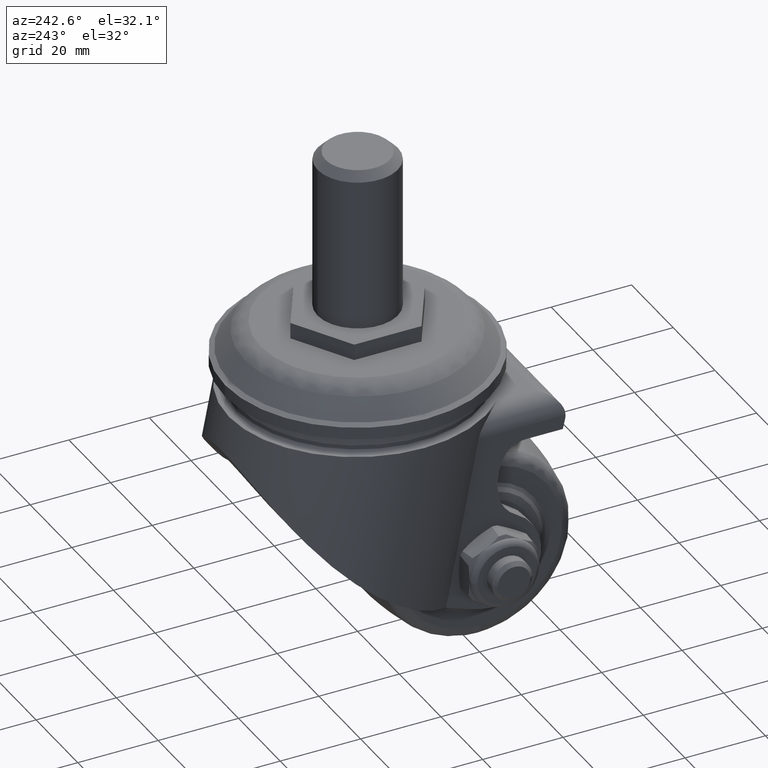
[diagram: clean part render]
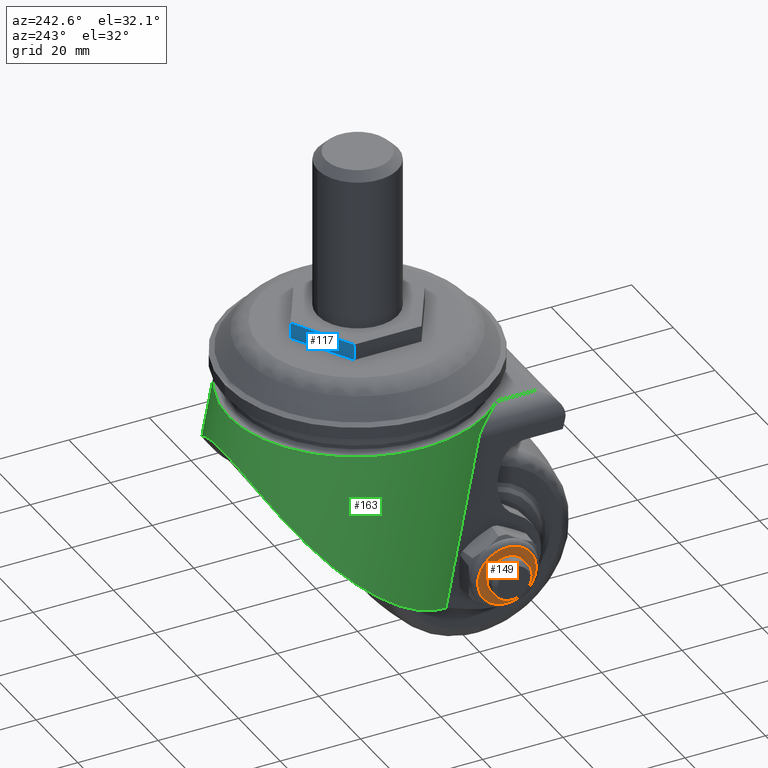
[diagram: same view with three faces highlighted in distinct colors, each labeled with its STEP entity id]
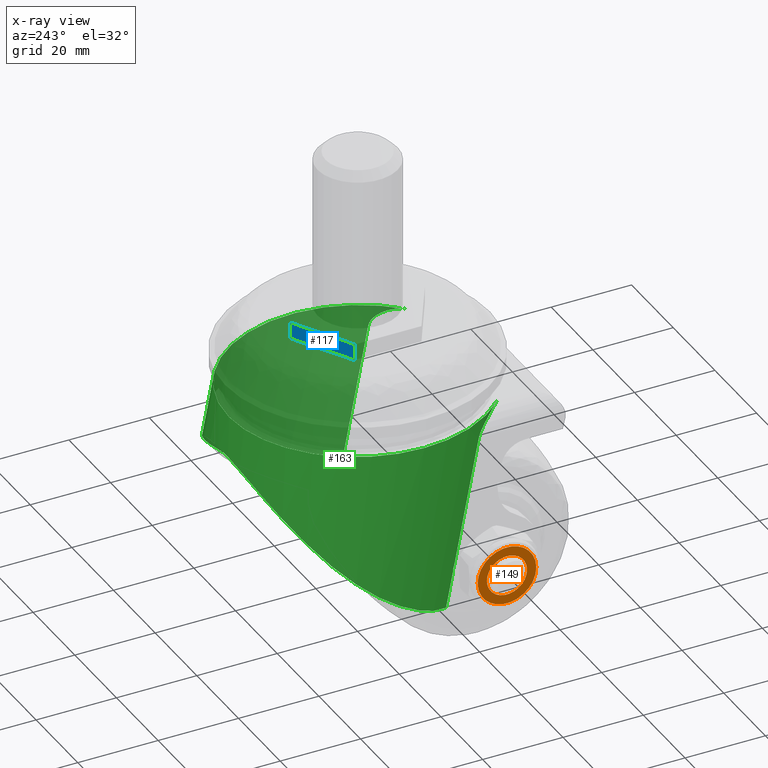
[diagram: x-ray of the same camera — body ghosted, the three highlighted faces saturated]
A machine part, auxiliary view with three faces highlighted in distinct colors.
The next image is the same camera in x-ray (body ghosted, the three faces saturated) — at least one of them is partly hidden behind the body in this view.
Their STEP definitions:

[orange] entity #149 — the highlighted planar face has unit normal (1, 0, 0).
#149=ADVANCED_FACE('',(#655,#656),#654,.F.);
#654=PLANE('',#2194);
#655=FACE_OUTER_BOUND('',#2195,.T.);
#656=FACE_BOUND('',#2196,.T.);
#2191=CARTESIAN_POINT('',(-3.31000000000E+01,-6.91727650743E+01,3.67900000000E+01));
#2192=DIRECTION('',(1.00000000000E+00,0.00000000000E+00,0.00000000000E+00));
#2193=DIRECTION('',(0.00000000000E+00,0.00000000000E+00,-1.00000000000E+00));
#2194=AXIS2_PLACEMENT_3D('',#2191,#2192,#2193);
#2195=EDGE_LOOP('',(#3853,#3854));
#2196=EDGE_LOOP('',(#3855,#3856));
#3853=ORIENTED_EDGE('',*,*,#4532,.F.);
#3854=ORIENTED_EDGE('',*,*,#4533,.F.);
#3855=ORIENTED_EDGE('',*,*,#4534,.T.);
#3856=ORIENTED_EDGE('',*,*,#4535,.T.);
#4532=EDGE_CURVE('',#5685,#5686,#5687,.T.);
#4533=EDGE_CURVE('',#5686,#5685,#5693,.T.);
#4534=EDGE_CURVE('',#5699,#5700,#5701,.T.);
#4535=EDGE_CURVE('',#5700,#5699,#5707,.T.);
#5685=VERTEX_POINT('',#8107);
#5686=VERTEX_POINT('',#8108);
#5687=CIRCLE('',#8112,7.30000000000E+00);
#5693=CIRCLE('',#8116,7.30000000000E+00);
#5699=VERTEX_POINT('',#8117);
#5700=VERTEX_POINT('',#8118);
#5701=CIRCLE('',#8122,5.00000000000E+00);
#5707=CIRCLE('',#8126,5.00000000000E+00);
#8107=CARTESIAN_POINT('',(-3.31000000000E+01,-5.40000000000E+01,2.73000000000E+01));
#8108=CARTESIAN_POINT('',(-3.31000000000E+01,-5.40000000000E+01,1.27000000000E+01));
#8109=CARTESIAN_POINT('',(-3.31000000000E+01,-5.40000000000E+01,2.00000000000E+01));
#8110=DIRECTION('',(1.00000000000E+00,0.00000000000E+00,0.00000000000E+00));
#8111=DIRECTION('',(0.00000000000E+00,-1.22460635382E-16,-1.00000000000E+00));
#8112=AXIS2_PLACEMENT_3D('',#8109,#8110,#8111);
#8113=CARTESIAN_POINT('',(-3.31000000000E+01,-5.40000000000E+01,2.00000000000E+01));
#8114=DIRECTION('',(1.00000000000E+00,0.00000000000E+00,0.00000000000E+00));
#8115=DIRECTION('',(0.00000000000E+00,-1.22460635382E-16,-1.00000000000E+00));
#8116=AXIS2_PLACEMENT_3D('',#8113,#8114,#8115);
#8117=CARTESIAN_POINT('',(-3.31000000000E+01,-5.40000000000E+01,1.50000000000E+01));
#8118=CARTESIAN_POINT('',(-3.31000000000E+01,-5.40000000000E+01,2.50000000000E+01));
#8119=CARTESIAN_POINT('',(-3.31000000000E+01,-5.40000000000E+01,2.00000000000E+01));
#8120=DIRECTION('',(1.00000000000E+00,0.00000000000E+00,0.00000000000E+00));
#8121=DIRECTION('',(0.00000000000E+00,-1.22460635382E-16,-1.00000000000E+00));
#8122=AXIS2_PLACEMENT_3D('',#8119,#8120,#8121);
#8123=CARTESIAN_POINT('',(-3.31000000000E+01,-5.40000000000E+01,2.00000000000E+01));
#8124=DIRECTION('',(1.00000000000E+00,0.00000000000E+00,0.00000000000E+00));
#8125=DIRECTION('',(0.00000000000E+00,-1.22460635382E-16,-1.00000000000E+00));
#8126=AXIS2_PLACEMENT_3D('',#8123,#8124,#8125);

[blue] entity #117 — the highlighted planar face has unit normal (0.5, -0.866, 0).
#117=ADVANCED_FACE('',(#330),#329,.F.);
#329=PLANE('',#1999);
#330=FACE_OUTER_BOUND('',#2000,.T.);
#1996=CARTESIAN_POINT('',(-1.59500250438E+01,-4.00000000001E-01,-7.53442236000E+00));
#1997=DIRECTION('',(4.99999851612E-01,0.00000000000E+00,8.66025489456E-01));
#1998=DIRECTION('',(8.66025489456E-01,0.00000000000E+00,-4.99999851612E-01));
#1999=AXIS2_PLACEMENT_3D('',#1996,#1997,#1998);
#2000=EDGE_LOOP('',(#3676,#3677,#3678,#3679));
#3676=ORIENTED_EDGE('',*,*,#4417,.T.);
#3677=ORIENTED_EDGE('',*,*,#4418,.F.);
#3678=ORIENTED_EDGE('',*,*,#4419,.F.);
#3679=ORIENTED_EDGE('',*,*,#4414,.T.);
#4414=EDGE_CURVE('',#4893,#4886,#4894,.T.);
#4417=EDGE_CURVE('',#4886,#4913,#4914,.T.);
#4418=EDGE_CURVE('',#4920,#4913,#4921,.T.);
#4419=EDGE_CURVE('',#4893,#4920,#4927,.T.);
#4886=VERTEX_POINT('',#7320);
#4893=VERTEX_POINT('',#7324);
#4894=LINE('',#7325,#7326);
#4913=VERTEX_POINT('',#7335);
#4914=LINE('',#7336,#7337);
#4920=VERTEX_POINT('',#7339);
#4921=LINE('',#7340,#7341);
#4927=LINE('',#7343,#7344);
#7320=CARTESIAN_POINT('',(-2.07303912418E-05,9.32587340685E-12,-1.67431560000E+01));
#7324=CARTESIAN_POINT('',(-2.07303912418E-05,4.00000000001E+00,-1.67431560000E+01));
#7325=CARTESIAN_POINT('',(-2.07303912418E-05,4.00000000001E+00,-1.67431560000E+01));
#7326=VECTOR('',#7327,4.00000000000E+00);
#7327=DIRECTION('',(0.00000000000E+00,-1.00000000000E+00,0.00000000000E+00));
#7335=CARTESIAN_POINT('',(-1.45000247304E+01,0.00000000000E+00,-8.37158010000E+00));
#7336=CARTESIAN_POINT('',(-2.15964164144E-05,9.32587340685E-12,-1.67431575000E+01));
#7337=VECTOR('',#7338,1.67431597690E+01);
#7338=DIRECTION('',(-8.66025489456E-01,0.00000000000E+00,4.99999851612E-01));
#7339=CARTESIAN_POINT('',(-1.45000247304E+01,4.00000000001E+00,-8.37158010000E+00));
#7340=CARTESIAN_POINT('',(-1.45000247304E+01,4.00000000001E+00,-8.37158010000E+00));
#7341=VECTOR('',#7342,4.00000000001E+00);
#7342=DIRECTION('',(0.00000000000E+00,-1.00000000000E+00,0.00000000000E+00));
#7343=CARTESIAN_POINT('',(-2.15964164144E-05,4.00000000001E+00,-1.67431575000E+01));
#7344=VECTOR('',#7345,1.67431597690E+01);
#7345=DIRECTION('',(-8.66025489456E-01,0.00000000000E+00,4.99999851612E-01));

[green] entity #163 — the highlighted cylindrical surface (partial cylindrical patch) has radius 31.5 mm, axis along (0, -0.1908, 0.9816).
#163=ADVANCED_FACE('',(#796),#795,.T.);
#795=CYLINDRICAL_SURFACE('',#2265,3.15000000000E+01);
#796=FACE_OUTER_BOUND('',#2266,.T.);
#2262=CARTESIAN_POINT('',(0.00000000000E+00,-7.07767669241E+01,-1.06475846995E+01));
#2263=DIRECTION('',(-0.00000000000E+00,9.81627183448E-01,1.90808995377E-01));
#2264=DIRECTION('',(-0.00000000000E+00,-1.90808995377E-01,9.81627183448E-01));
#2265=AXIS2_PLACEMENT_3D('',#2262,#2263,#2264);
#2266=EDGE_LOOP('',(#3913,#3914,#3915,#3916,#3917,#3918,#3919,#3920,#3921));
#3913=ORIENTED_EDGE('',*,*,#4461,.F.);
#3914=ORIENTED_EDGE('',*,*,#4493,.T.);
#3915=ORIENTED_EDGE('',*,*,#4473,.F.);
#3916=ORIENTED_EDGE('',*,*,#4554,.T.);
#3917=ORIENTED_EDGE('',*,*,#4555,.T.);
#3918=ORIENTED_EDGE('',*,*,#4470,.F.);
#3919=ORIENTED_EDGE('',*,*,#4553,.F.);
#3920=ORIENTED_EDGE('',*,*,#4556,.F.);
#3921=ORIENTED_EDGE('',*,*,#4458,.F.);
#4458=EDGE_CURVE('',#5188,#5174,#5195,.T.);
#4461=EDGE_CURVE('',#5209,#5188,#5216,.T.);
#4470=EDGE_CURVE('',#5277,#5278,#5279,.T.);
#4473=EDGE_CURVE('',#5292,#5299,#5300,.T.);
#4493=EDGE_CURVE('',#5209,#5299,#5432,.T.);
#4553=EDGE_CURVE('',#5815,#5277,#5822,.T.);
#4554=EDGE_CURVE('',#5292,#5828,#5829,.T.);
#4555=EDGE_CURVE('',#5828,#5278,#5835,.T.);
#4556=EDGE_CURVE('',#5174,#5815,#5841,.T.);
#5174=VERTEX_POINT('',#7547);
#5188=VERTEX_POINT('',#7555);
#5195=(BOUNDED_CURVE() B_SPLINE_CURVE(3,(#7559,#7560,#7561,#7562,#7563,#7564,#7565,#7566,#7567,#7568,#7569,#7570,#7571,#7572,#7573,#7574,#7575,#7576),.UNSPECIFIED.,.F.,.F.) B_SPLINE_CURVE_WITH_KNOTS((4,2,2,2,2,2,2,2,4),(0.00000000000E+00,6.69203929331E-04,1.33840785866E-03,2.67681571732E-03,4.01522357599E-03,5.35363143465E-03,6.69203929331E-03,8.03044715197E-03,1.07072628693E-02),.UNSPECIFIED.) CURVE() GEOMETRIC_REPRESENTATION_ITEM() RATIONAL_B_SPLINE_CURVE((1.00000000000E+00,1.00000000000E+00,1.00000000000E+00,1.00000000000E+00,1.00000000000E+00,1.00000000000E+00,1.00000000000E+00,1.00000000000E+00,1.00000000000E+00,1.00000000000E+00,1.00000000000E+00,1.00000000000E+00,1.00000000000E+00,1.00000000000E+00,1.00000000000E+00,1.00000000000E+00,1.00000000000E+00,1.00000000000E+00)) REPRESENTATION_ITEM('') );
#5209=VERTEX_POINT('',#7583);
#5216=LINE('',#7588,#7589);
#5277=VERTEX_POINT('',#7628);
#5278=VERTEX_POINT('',#7629);
#5279=LINE('',#7630,#7631);
#5292=VERTEX_POINT('',#7637);
#5299=VERTEX_POINT('',#7641);
#5300=LINE('',#7642,#7643);
#5432=(BOUNDED_CURVE() B_SPLINE_CURVE(3,(#7821,#7822,#7823,#7824,#7825,#7826,#7827,#7828,#7829,#7830,#7831,#7832,#7833,#7834,#7835,#7836,#7837,#7838,#7839,#7840,#7841,#7842,#7843,#7844,#7845,#7846,#7847,#7848,#7849,#7850,#7851,#7852,#7853,#7854,#7855,#7856,#7857,#7858,#7859,#7860,#7861,#7862,#7863,#7864,#7865,#7866,#7867,#7868,#7869,#7870,#7871,#7872,#7873,#7874,#7875,#7876,#7877,#7878,#7879,#7880,#7881,#7882,#7883,#7884,#7885,#7886,#7887,#7888,#7889,#7890,#7891,#7892,#7893,#7894,#7895,#7896,#7897,#7898,#7899,#7900,#7901,#7902,#7903,#7904,#7905,#7906,#7907,#7908,#7909,#7910),.UNSPECIFIED.,.F.,.F.) B_SPLINE_CURVE_WITH_KNOTS((4,2,2,2,2,2,2,2,2,2,2,2,2,2,2,2,2,2,2,2,2,2,2,2,2,2,2,2,2,2,2,2,2,2,2,2,2,2,2,2,2,2,2,2,4),(-7.40107397298E-02,-7.16970847590E-02,-6.93834297882E-02,-6.47561198465E-02,-6.24424648757E-02,-6.01288099049E-02,-5.55014999632E-02,-5.31878449924E-02,-5.08741900216E-02,-4.62468800799E-02,-4.16195701383E-02,-3.93059151675E-02,-3.69922601966E-02,-3.23649502550E-02,-2.77376403134E-02,-2.31103303717E-02,-1.84830204301E-02,-1.38557104884E-02,-1.15420555176E-02,-9.22840054677E-03,-6.91474557594E-03,-5.75791809053E-03,-4.60109060512E-03,2.62193365282E-05,4.65352927818E-03,6.96718424900E-03,9.28083921982E-03,1.39081491615E-02,1.85354591031E-02,2.31627690448E-02,2.77900789864E-02,3.01037339572E-02,3.24173889281E-02,3.70446988697E-02,4.16720088114E-02,4.39856637822E-02,4.62993187530E-02,5.09266286946E-02,5.55539386363E-02,6.01812485779E-02,6.48085585196E-02,6.71222134904E-02,6.82790409758E-02,6.94358684612E-02,7.40631784029E-02),.UNSPECIFIED.) CURVE() GEOMETRIC_REPRESENTATION_ITEM() RATIONAL_B_SPLINE_CURVE((1.00000000000E+00,1.00000000000E+00,1.00000000000E+00,1.00000000000E+00,1.00000000000E+00,1.00000000000E+00,1.00000000000E+00,1.00000000000E+00,1.00000000000E+00,1.00000000000E+00,1.00000000000E+00,1.00000000000E+00,1.00000000000E+00,1.00000000000E+00,1.00000000000E+00,1.00000000000E+00,1.00000000000E+00,1.00000000000E+00,1.00000000000E+00,1.00000000000E+00,1.00000000000E+00,1.00000000000E+00,1.00000000000E+00,1.00000000000E+00,1.00000000000E+00,1.00000000000E+00,1.00000000000E+00,1.00000000000E+00,1.00000000000E+00,1.00000000000E+00,1.00000000000E+00,1.00000000000E+00,1.00000000000E+00,1.00000000000E+00,1.00000000000E+00,1.00000000000E+00,1.00000000000E+00,1.00000000000E+00,1.00000000000E+00,1.00000000000E+00,1.00000000000E+00,1.00000000000E+00,1.00000000000E+00,1.00000000000E+00,1.00000000000E+00,1.00000000000E+00,1.00000000000E+00,1.00000000000E+00,1.00000000000E+00,1.00000000000E+00,1.00000000000E+00,1.00000000000E+00,1.00000000000E+00,1.00000000000E+00,1.00000000000E+00,1.00000000000E+00,1.00000000000E+00,1.00000000000E+00,1.00000000000E+00,1.00000000000E+00,1.00000000000E+00,1.00000000000E+00,1.00000000000E+00,1.00000000000E+00,1.00000000000E+00,1.00000000000E+00,1.00000000000E+00,1.00000000000E+00,1.00000000000E+00,1.00000000000E+00,1.00000000000E+00,1.00000000000E+00,1.00000000000E+00,1.00000000000E+00,1.00000000000E+00,1.00000000000E+00,1.00000000000E+00,1.00000000000E+00,1.00000000000E+00,1.00000000000E+00,1.00000000000E+00,1.00000000000E+00,1.00000000000E+00,1.00000000000E+00,1.00000000000E+00,1.00000000000E+00,1.00000000000E+00,1.00000000000E+00,1.00000000000E+00,1.00000000000E+00)) REPRESENTATION_ITEM('') );
#5815=VERTEX_POINT('',#8187);
#5822=(BOUNDED_CURVE() B_SPLINE_CURVE(3,(#8191,#8192,#8193,#8194,#8195,#8196,#8197,#8198,#8199,#8200,#8201,#8202,#8203,#8204,#8205,#8206,#8207,#8208,#8209,#8210),.UNSPECIFIED.,.F.,.F.) B_SPLINE_CURVE_WITH_KNOTS((4,2,2,2,2,2,2,2,2,4),(0.00000000000E+00,2.65846317605E-03,3.98769476407E-03,5.31692635210E-03,6.64615794012E-03,7.97538952815E-03,8.64000532216E-03,9.30462111617E-03,9.96923691019E-03,1.06338527042E-02),.UNSPECIFIED.) CURVE() GEOMETRIC_REPRESENTATION_ITEM() RATIONAL_B_SPLINE_CURVE((1.00000000000E+00,1.00000000000E+00,1.00000000000E+00,1.00000000000E+00,1.00000000000E+00,1.00000000000E+00,1.00000000000E+00,1.00000000000E+00,1.00000000000E+00,1.00000000000E+00,1.00000000000E+00,1.00000000000E+00,1.00000000000E+00,1.00000000000E+00,1.00000000000E+00,1.00000000000E+00,1.00000000000E+00,1.00000000000E+00,1.00000000000E+00,1.00000000000E+00)) REPRESENTATION_ITEM('') );
#5828=VERTEX_POINT('',#8211);
#5829=(BOUNDED_CURVE() B_SPLINE_CURVE(2,(#8212,#8213,#8214),.UNSPECIFIED.,.F.,.F.) B_SPLINE_CURVE_WITH_KNOTS((3,3),(9.99627828229E-01,1.00539539798E+00),.UNSPECIFIED.) CURVE() GEOMETRIC_REPRESENTATION_ITEM() RATIONAL_B_SPLINE_CURVE((1.00000000000E+00,9.99995841895E-01,1.00000000000E+00)) REPRESENTATION_ITEM('') );
#5835=(BOUNDED_CURVE() B_SPLINE_CURVE(2,(#8215,#8216,#8217),.UNSPECIFIED.,.F.,.F.) B_SPLINE_CURVE_WITH_KNOTS((3,3),(2.13619725561E+00,2.14196482536E+00),.UNSPECIFIED.) CURVE() GEOMETRIC_REPRESENTATION_ITEM() RATIONAL_B_SPLINE_CURVE((1.00000000000E+00,9.99995841895E-01,1.00000000000E+00)) REPRESENTATION_ITEM('') );
#5841=(BOUNDED_CURVE() B_SPLINE_CURVE(2,(#8218,#8219,#8220,#8221,#8222,#8223,#8224,#8225,#8226),.UNSPECIFIED.,.F.,.F.) B_SPLINE_CURVE_WITH_KNOTS((3,2,2,2,3),(3.89282465272E+00,5.09380313794E+00,6.28318530718E+00,7.47256747642E+00,8.67354596164E+00),.UNSPECIFIED.) CURVE() GEOMETRIC_REPRESENTATION_ITEM() RATIONAL_B_SPLINE_CURVE((1.00000000000E+00,8.26693913080E-01,1.00000000000E+00,8.26693913080E-01,1.00000000000E+00,8.26693913080E-01,1.00000000000E+00,8.26693913080E-01,1.00000000000E+00)) REPRESENTATION_ITEM('') );
#7547=CARTESIAN_POINT('',(2.15000000000E+01,-1.60000000000E+01,2.34525597318E+01));
#7555=CARTESIAN_POINT('',(2.65000000000E+01,-2.10000000000E+01,1.63761588389E+01));
#7559=CARTESIAN_POINT('',(2.65000000000E+01,-2.10000000000E+01,1.63761588389E+01));
#7560=CARTESIAN_POINT('',(2.65000000000E+01,-2.07772232291E+01,1.64194622565E+01));
#7561=CARTESIAN_POINT('',(2.64852649917E+01,-2.05638493815E+01,1.64843466225E+01));
#7562=CARTESIAN_POINT('',(2.64319533935E+01,-2.01521025277E+01,1.66484457017E+01));
#7563=CARTESIAN_POINT('',(2.63928215200E+01,-1.99520328027E+01,1.67488332143E+01));
#7564=CARTESIAN_POINT('',(2.62482948803E+01,-1.93858604697E+01,1.70834979208E+01));
#7565=CARTESIAN_POINT('',(2.61176731741E+01,-1.90518094002E+01,1.73486471210E+01));
#7566=CARTESIAN_POINT('',(2.58073321042E+01,-1.84377271223E+01,1.79281528440E+01));
#7567=CARTESIAN_POINT('',(2.56312354059E+01,-1.81662310370E+01,1.82354604015E+01));
#7568=CARTESIAN_POINT('',(2.52468873700E+01,-1.76746146763E+01,1.88671928775E+01));
#7569=CARTESIAN_POINT('',(2.50380922954E+01,-1.74542746240E+01,1.91925356004E+01));
#7570=CARTESIAN_POINT('',(2.45880535391E+01,-1.70561198202E+01,1.98561562797E+01));
#7571=CARTESIAN_POINT('',(2.43491243958E+01,-1.68807431029E+01,2.01908751159E+01));
#7572=CARTESIAN_POINT('',(2.38486850435E+01,-1.65762611092E+01,2.08557095054E+01));
#7573=CARTESIAN_POINT('',(2.35863304604E+01,-1.64464743060E+01,2.11870916419E+01));
#7574=CARTESIAN_POINT('',(2.27597701272E+01,-1.61253242805E+01,2.21759877733E+01));
#7575=CARTESIAN_POINT('',(2.21506455446E+01,-1.60000000000E+01,2.28335486715E+01));
#7576=CARTESIAN_POINT('',(2.15000000000E+01,-1.60000000000E+01,2.34525597318E+01));
#7583=CARTESIAN_POINT('',(2.65000000000E+01,-6.27509618501E+01,8.26059396769E+00));
#7588=CARTESIAN_POINT('',(2.65000000000E+01,-6.27509618501E+01,8.26059396769E+00));
#7589=VECTOR('',#7590,4.25324018672E+01);
#7590=DIRECTION('',(0.00000000000E+00,9.81627183448E-01,1.90808995377E-01));
#7628=CARTESIAN_POINT('',(-2.65000000000E+01,-2.10000000000E+01,1.63761588389E+01));
#7629=CARTESIAN_POINT('',(-2.65000000000E+01,-5.18773979738E+01,1.03742006754E+01));
#7630=CARTESIAN_POINT('',(-2.65000000000E+01,-2.10000000000E+01,1.63761588389E+01));
#7631=VECTOR('',#7632,3.14553208127E+01);
#7632=DIRECTION('',(0.00000000000E+00,-9.81627183448E-01,-1.90808995377E-01));
#7637=CARTESIAN_POINT('',(-2.65000000000E+01,-5.38024935612E+01,1.00000000000E+01));
#7641=CARTESIAN_POINT('',(-2.65000000000E+01,-6.27509618501E+01,8.26059396769E+00));
#7642=CARTESIAN_POINT('',(-2.65000000000E+01,-5.38024935612E+01,1.00000000000E+01));
#7643=VECTOR('',#7644,9.11595404019E+00);
#7644=DIRECTION('',(0.00000000000E+00,-9.81627183448E-01,-1.90808995377E-01));
#7821=CARTESIAN_POINT('',(2.65000000000E+01,-6.27509618501E+01,8.26059396769E+00));
#7822=CARTESIAN_POINT('',(2.69147744530E+01,-6.25095947832E+01,7.64998593072E+00));
#7823=CARTESIAN_POINT('',(2.73080924719E+01,-6.22530588907E+01,7.02315583114E+00));
#7824=CARTESIAN_POINT('',(2.80419504275E+01,-6.17133764456E+01,5.75284737978E+00));
#7825=CARTESIAN_POINT('',(2.83809678944E+01,-6.14316050110E+01,5.11244943016E+00));
#7826=CARTESIAN_POINT('',(2.93176459252E+01,-6.05489924376E+01,3.17760269324E+00));
#7827=CARTESIAN_POINT('',(2.98352643547E+01,-5.99109272236E+01,1.86959676711E+00));
#7828=CARTESIAN_POINT('',(3.04580599066E+01,-5.88721613993E+01,-1.13409849273E-01));
#7829=CARTESIAN_POINT('',(3.06399663525E+01,-5.85122776816E+01,-7.77937778920E-01));
#7830=CARTESIAN_POINT('',(3.09525037525E+01,-5.77638055064E+01,-2.11329017750E+00));
#7831=CARTESIAN_POINT('',(3.10823516750E+01,-5.73765089265E+01,-2.78162420124E+00));
#7832=CARTESIAN_POINT('',(3.13917155628E+01,-5.61888474827E+01,-4.76418164567E+00));
#7833=CARTESIAN_POINT('',(3.14936938276E+01,-5.53575560191E+01,-6.06530167263E+00));
#7834=CARTESIAN_POINT('',(3.15027294959E+01,-5.40508129341E+01,-7.98511717485E+00));
#7835=CARTESIAN_POINT('',(3.14816602784E+01,-5.36052574285E+01,-8.61974518091E+00));
#7836=CARTESIAN_POINT('',(3.13924327674E+01,-5.26940230843E+01,-9.87821073759E+00));
#7837=CARTESIAN_POINT('',(3.13239152919E+01,-5.22268019980E+01,-1.05039984118E+01));
#7838=CARTESIAN_POINT('',(3.10517826403E+01,-5.08100989030E+01,-1.23450913831E+01));
#7839=CARTESIAN_POINT('',(3.07824556253E+01,-4.98439842043E+01,-1.35270076784E+01));
#7840=CARTESIAN_POINT('',(3.00840820813E+01,-4.78714696971E+01,-1.58073817322E+01));
#7841=CARTESIAN_POINT('',(2.96549689392E+01,-4.68650575173E+01,-1.69058085104E+01));
#7842=CARTESIAN_POINT('',(2.88960005981E+01,-4.53277082052E+01,-1.84943677527E+01));
#7843=CARTESIAN_POINT('',(2.86233078692E+01,-4.48100652376E+01,-1.90145066027E+01));
#7844=CARTESIAN_POINT('',(2.80458252448E+01,-4.37771055088E+01,-2.00249206548E+01));
#7845=CARTESIAN_POINT('',(2.77404239732E+01,-4.32604587982E+01,-2.05166079454E+01));
#7846=CARTESIAN_POINT('',(2.67756389861E+01,-4.17109225220E+01,-2.19532631042E+01));
#7847=CARTESIAN_POINT('',(2.60679529752E+01,-4.06783467559E+01,-2.28599444746E+01));
#7848=CARTESIAN_POINT('',(2.45242203607E+01,-3.86207686587E+01,-2.45792641779E+01));
#7849=CARTESIAN_POINT('',(2.36880465109E+01,-3.75954877223E+01,-2.53920528272E+01));
#7850=CARTESIAN_POINT('',(2.18790589239E+01,-3.55635555942E+01,-2.69273041631E+01));
#7851=CARTESIAN_POINT('',(2.09214012666E+01,-3.45738966077E+01,-2.76369891907E+01));
#7852=CARTESIAN_POINT('',(1.88935422898E+01,-3.26608378317E+01,-2.89497603588E+01));
#7853=CARTESIAN_POINT('',(1.78234656507E+01,-3.17372930230E+01,-2.95528557965E+01));
#7854=CARTESIAN_POINT('',(1.55536960493E+01,-2.99791672531E+01,-3.06554998629E+01));
#7855=CARTESIAN_POINT('',(1.43543427127E+01,-2.91442507936E+01,-3.11551642544E+01));
#7856=CARTESIAN_POINT('',(1.24323267720E+01,-2.79875135440E+01,-3.18234631287E+01));
#7857=CARTESIAN_POINT('',(1.17691472436E+01,-2.76173812197E+01,-3.20329535038E+01));
#7858=CARTESIAN_POINT('',(1.04208547162E+01,-2.69292961107E+01,-3.24161161124E+01));
#7859=CARTESIAN_POINT('',(9.73315395070E+00,-2.66096301769E+01,-3.25907996162E+01));
#7860=CARTESIAN_POINT('',(8.32784557702E+00,-2.60255976218E+01,-3.29056748868E+01));
#7861=CARTESIAN_POINT('',(7.61024465142E+00,-2.57612190266E+01,-3.30458750662E+01));
#7862=CARTESIAN_POINT('',(6.50867786910E+00,-2.54122067852E+01,-3.32290388212E+01));
#7863=CARTESIAN_POINT('',(6.13728739161E+00,-2.53038087514E+01,-3.32855620432E+01));
#7864=CARTESIAN_POINT('',(5.38554592371E+00,-2.51040901114E+01,-3.33892125716E+01));
#7865=CARTESIAN_POINT('',(5.00480313379E+00,-2.50127464161E+01,-3.34363508955E+01));
#7866=CARTESIAN_POINT('',(3.09838078915E+00,-2.46060027262E+01,-3.36454679928E+01));
#7867=CARTESIAN_POINT('',(1.54830635535E+00,-2.44358819375E+01,-3.37307574883E+01));
#7868=CARTESIAN_POINT('',(-1.60186269928E+00,-2.44397804215E+01,-3.37287871923E+01));
#7869=CARTESIAN_POINT('',(-3.13697330496E+00,-2.46132881444E+01,-3.36417391243E+01));
#7870=CARTESIAN_POINT('',(-5.38749199066E+00,-2.50948755933E+01,-3.33941177433E+01));
#7871=CARTESIAN_POINT('',(-6.12894655169E+00,-2.52923601574E+01,-3.32919168116E+01));
#7872=CARTESIAN_POINT('',(-7.59541476279E+00,-2.57560644032E+01,-3.30485981577E+01));
#7873=CARTESIAN_POINT('',(-8.32352338480E+00,-2.60238267584E+01,-3.29066278757E+01));
#7874=CARTESIAN_POINT('',(-1.04420994109E+01,-2.69042102933E+01,-3.24319832186E+01));
#7875=CARTESIAN_POINT('',(-1.17795764897E+01,-2.75955713520E+01,-3.20497702681E+01));
#7876=CARTESIAN_POINT('',(-1.43361668336E+01,-2.91324165241E+01,-3.11621352524E+01));
#7877=CARTESIAN_POINT('',(-1.55600763288E+01,-2.99831477866E+01,-3.06532433209E+01));
#7878=CARTESIAN_POINT('',(-1.78512370459E+01,-3.17597802475E+01,-2.95385089488E+01));
#7879=CARTESIAN_POINT('',(-1.89261652630E+01,-3.26897159189E+01,-2.89306137493E+01));
#7880=CARTESIAN_POINT('',(-2.09561846157E+01,-3.46086729352E+01,-2.76124325392E+01));
#7881=CARTESIAN_POINT('',(-2.19110976619E+01,-3.55978668094E+01,-2.69021172256E+01));
#7882=CARTESIAN_POINT('',(-2.32598669969E+01,-3.71154141407E+01,-2.57543930044E+01));
#7883=CARTESIAN_POINT('',(-2.36964782402E+01,-3.76282399483E+01,-2.53570307717E+01));
#7884=CARTESIAN_POINT('',(-2.45365347805E+01,-3.86574732808E+01,-2.45386344973E+01));
#7885=CARTESIAN_POINT('',(-2.49393285340E+01,-3.91729493466E+01,-2.41183978077E+01));
#7886=CARTESIAN_POINT('',(-2.60976235773E+01,-4.07202237624E+01,-2.28238126413E+01));
#7887=CARTESIAN_POINT('',(-2.68033160300E+01,-4.17527907888E+01,-2.19156974600E+01));
#7888=CARTESIAN_POINT('',(-2.80829208297E+01,-4.38132248085E+01,-2.00028090268E+01));
#7889=CARTESIAN_POINT('',(-2.86568396453E+01,-4.48411222501E+01,-1.89980733720E+01));
#7890=CARTESIAN_POINT('',(-2.94129896730E+01,-4.63760217386E+01,-1.74106623473E+01));
#7891=CARTESIAN_POINT('',(-2.96481579133E+01,-4.68881051808E+01,-1.68663344857E+01));
#7892=CARTESIAN_POINT('',(-3.00777375676E+01,-4.79003714568E+01,-1.57591957014E+01));
#7893=CARTESIAN_POINT('',(-3.02722022612E+01,-4.84003545999E+01,-1.51967231842E+01));
#7894=CARTESIAN_POINT('',(-3.07938750604E+01,-4.98814168789E+01,-1.34821005467E+01));
#7895=CARTESIAN_POINT('',(-3.10596698506E+01,-5.08436119052E+01,-1.23028082073E+01));
#7896=CARTESIAN_POINT('',(-3.14162699107E+01,-5.27153442977E+01,-9.86780433018E+00));
#7897=CARTESIAN_POINT('',(-3.15071776545E+01,-5.36261666783E+01,-8.61023912638E+00));
#7898=CARTESIAN_POINT('',(-3.14919397100E+01,-5.53874614993E+01,-6.02008805334E+00));
#7899=CARTESIAN_POINT('',(-3.13860798046E+01,-5.62183426115E+01,-4.71648564618E+00));
#7900=CARTESIAN_POINT('',(-3.09735557945E+01,-5.77861023843E+01,-2.09630875655E+00));
#7901=CARTESIAN_POINT('',(-3.06669506739E+01,-5.85229654907E+01,-7.79713163223E-01));
#7902=CARTESIAN_POINT('',(-3.00454549977E+01,-5.95607381013E+01,1.20092976977E+00));
#7903=CARTESIAN_POINT('',(-2.98112729941E+01,-5.98953982128E+01,1.86209077899E+00));
#7904=CARTESIAN_POINT('',(-2.94171738700E+01,-6.03807830437E+01,2.85461122758E+00));
#7905=CARTESIAN_POINT('',(-2.92783904730E+01,-6.05400591773E+01,3.18613139977E+00));
#7906=CARTESIAN_POINT('',(-2.89888849295E+01,-6.08502537867E+01,3.84314684271E+00));
#7907=CARTESIAN_POINT('',(-2.88379245309E+01,-6.10015049763E+01,4.16930291045E+00));
#7908=CARTESIAN_POINT('',(-2.80522973311E+01,-6.17392822511E+01,5.78815032920E+00));
#7909=CARTESIAN_POINT('',(-2.73255698650E+01,-6.22705432144E+01,7.04523561798E+00));
#7910=CARTESIAN_POINT('',(-2.65000000000E+01,-6.27509618501E+01,8.26059396769E+00));
#8187=CARTESIAN_POINT('',(-2.15000000000E+01,-1.60000000000E+01,2.34525597318E+01));
#8191=CARTESIAN_POINT('',(-2.15000000000E+01,-1.60000000000E+01,2.34525597318E+01));
#8192=CARTESIAN_POINT('',(-2.21515542309E+01,-1.60000000000E+01,2.28326841657E+01));
#8193=CARTESIAN_POINT('',(-2.27484084185E+01,-1.61219977903E+01,2.21889009789E+01));
#8194=CARTESIAN_POINT('',(-2.35801666047E+01,-1.64435469737E+01,2.11947988284E+01));
#8195=CARTESIAN_POINT('',(-2.38476545869E+01,-1.65756155942E+01,2.08570890796E+01));
#8196=CARTESIAN_POINT('',(-2.43506150715E+01,-1.68816686457E+01,2.01888841300E+01));
#8197=CARTESIAN_POINT('',(-2.45875264532E+01,-1.70559242961E+01,1.98568021368E+01));
#8198=CARTESIAN_POINT('',(-2.50335422019E+01,-1.74499813713E+01,1.91993749917E+01));
#8199=CARTESIAN_POINT('',(-2.52426961784E+01,-1.76695904781E+01,1.88739541783E+01));
#8200=CARTESIAN_POINT('',(-2.56313943519E+01,-1.81661010998E+01,1.82353253725E+01));
#8201=CARTESIAN_POINT('',(-2.58081074582E+01,-1.84392505290E+01,1.79267079960E+01));
#8202=CARTESIAN_POINT('',(-2.60397484177E+01,-1.88976224804E+01,1.74941559928E+01));
#8203=CARTESIAN_POINT('',(-2.61118002963E+01,-1.90598506547E+01,1.73541675833E+01));
#8204=CARTESIAN_POINT('',(-2.62402247771E+01,-1.93990157659E+01,1.70928117458E+01));
#8205=CARTESIAN_POINT('',(-2.62967998740E+01,-1.95760331572E+01,1.69711470941E+01));
#8206=CARTESIAN_POINT('',(-2.63919905179E+01,-1.99486202525E+01,1.67507903617E+01));
#8207=CARTESIAN_POINT('',(-2.64306632104E+01,-2.01441309879E+01,1.66520252894E+01));
#8208=CARTESIAN_POINT('',(-2.64850027085E+01,-2.05598869965E+01,1.64855346163E+01));
#8209=CARTESIAN_POINT('',(-2.65000000000E+01,-2.07771474608E+01,1.64194769844E+01));
#8210=CARTESIAN_POINT('',(-2.65000000000E+01,-2.10000000000E+01,1.63761588389E+01));
#8211=CARTESIAN_POINT('',(-2.65977768709E+01,-5.30000000000E+01,1.00000000000E+01));
#8212=CARTESIAN_POINT('',(-2.65000000000E+01,-5.38024935612E+01,1.00000000000E+01));
#8213=CARTESIAN_POINT('',(-2.65491092229E+01,-5.34019856563E+01,1.00000000000E+01));
#8214=CARTESIAN_POINT('',(-2.65977768709E+01,-5.30000000000E+01,1.00000000000E+01));
#8215=CARTESIAN_POINT('',(-2.65977768709E+01,-5.30000000000E+01,1.00000000000E+01));
#8216=CARTESIAN_POINT('',(-2.65491092229E+01,-5.24376653795E+01,1.01874448735E+01));
#8217=CARTESIAN_POINT('',(-2.65000000000E+01,-5.18773979738E+01,1.03742006754E+01));
#8218=CARTESIAN_POINT('',(2.15000000000E+01,-1.60000000000E+01,2.34525597318E+01));
#8219=CARTESIAN_POINT('',(3.71687010262E+01,-1.60000000000E+01,8.54567330940E+00));
#8220=CARTESIAN_POINT('',(2.93038773825E+01,-1.60000000000E+01,-1.17719811964E+01));
#8221=CARTESIAN_POINT('',(2.14390537387E+01,-1.60000000000E+01,-3.20896357023E+01));
#8222=CARTESIAN_POINT('',(7.71502002908E-15,-1.60000000000E+01,-3.20896357023E+01));
#8223=CARTESIAN_POINT('',(-2.14390537387E+01,-1.60000000000E+01,-3.20896357023E+01));
#8224=CARTESIAN_POINT('',(-2.93038773825E+01,-1.60000000000E+01,-1.17719811964E+01));
#8225=CARTESIAN_POINT('',(-3.71687010262E+01,-1.60000000000E+01,8.54567330940E+00));
#8226=CARTESIAN_POINT('',(-2.15000000000E+01,-1.60000000000E+01,2.34525597318E+01));